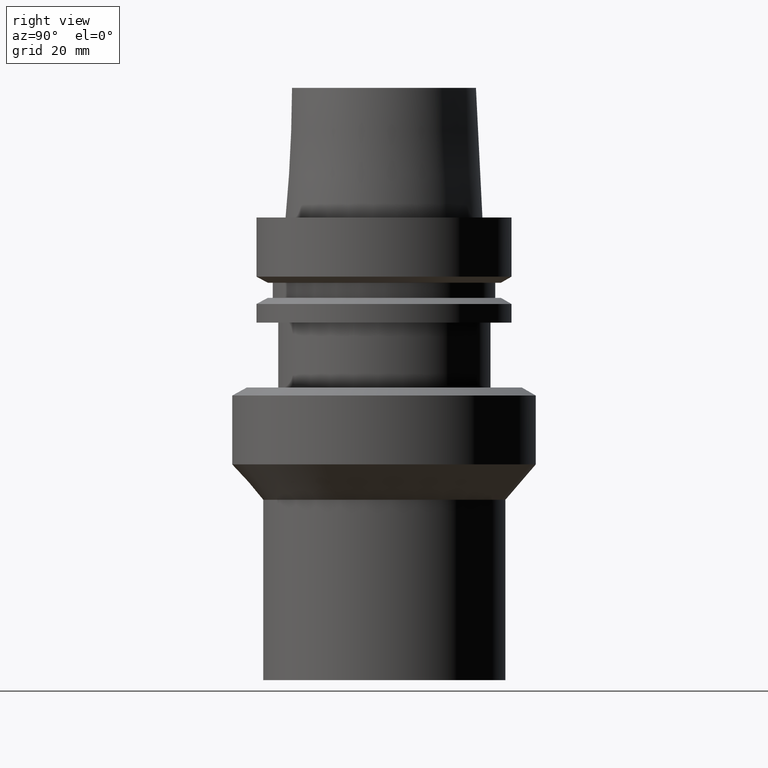
[diagram: clean part render]
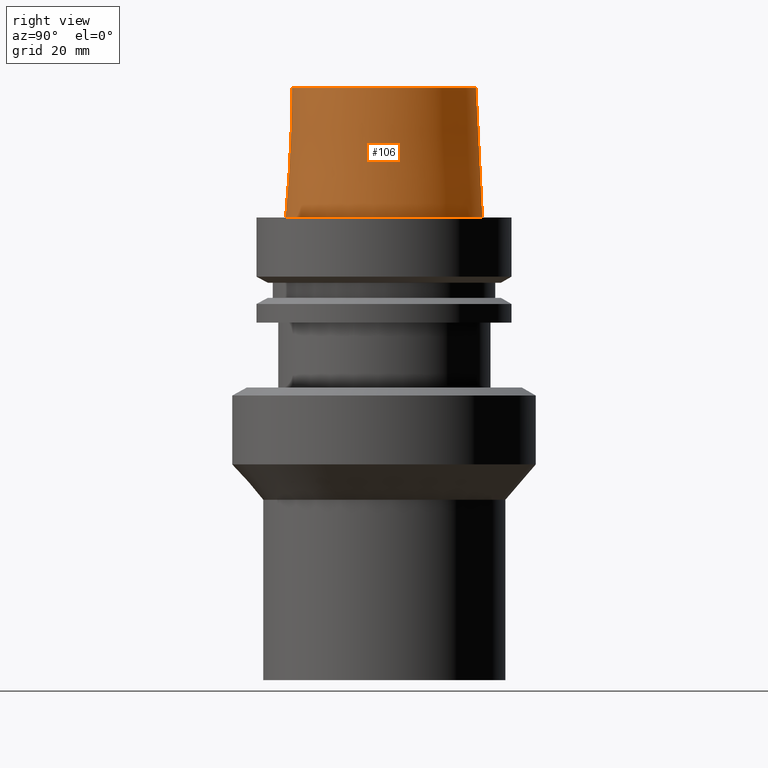
[diagram: same view with one face highlighted and labeled with its STEP entity id]
A machine part, right view. The second image highlights one B-rep face of the part: STEP entity #106.
In plain terms, the highlighted conical surface has half-angle 2.862 deg.
Its self-contained STEP definition (entity closure, byte-faithful):
#106=ADVANCED_FACE('Unnamed[1]',(#240,#241),#242,.T.);
#118=EDGE_CURVE('Unnamed[1]',#260,#260,#261,.T.);
#135=EDGE_CURVE('Unnamed[1]',#285,#285,#286,.T.);
#240=FACE_BOUND('',#406,.T.);
#241=FACE_BOUND('',#407,.T.);
#242=CONICAL_SURFACE('',#408,23.515,0.0499583957219433);
#260=VERTEX_POINT('',#431);
#261=CIRCLE('',#432,22.715);
#285=VERTEX_POINT('',#462);
#286=CIRCLE('',#463,24.315);
#406=EDGE_LOOP('',(#576));
#407=EDGE_LOOP('',(#577));
#408=AXIS2_PLACEMENT_3D('',#578,#579,#580);
#431=CARTESIAN_POINT('',(-1.95943487863576E-015,22.715,32.0));
#432=AXIS2_PLACEMENT_3D('',#599,#600,#601);
#462=CARTESIAN_POINT('',(-2.99705514225764E-031,24.315,2.97772869212679E-015));
#463=AXIS2_PLACEMENT_3D('',#624,#625,#626);
#576=ORIENTED_EDGE('',*,*,#118,.F.);
#577=ORIENTED_EDGE('',*,*,#135,.T.);
#578=CARTESIAN_POINT('',(-9.79717439317882E-016,-1.95943487863576E-015,16.0));
#579=DIRECTION('',(6.12323399573677E-017,1.22464679914706E-016,-1.0));
#580=DIRECTION('',(-1.2325951644078E-032,1.0,1.22464679914706E-016));
#599=CARTESIAN_POINT('',(-1.95943487863576E-015,-3.91886975727153E-015,32.0));
#600=DIRECTION('',(-6.12323399573676E-017,-1.22464679914768E-016,1.0));
#601=DIRECTION('',(-1.23259516440764E-032,1.0,1.22464679914768E-016));
#624=CARTESIAN_POINT('',(0.0,0.0,0.0));
#625=DIRECTION('',(-6.12323399573677E-017,-1.22464679914714E-016,1.0));
#626=DIRECTION('',(-1.23259516440795E-032,1.0,1.22464679914714E-016));